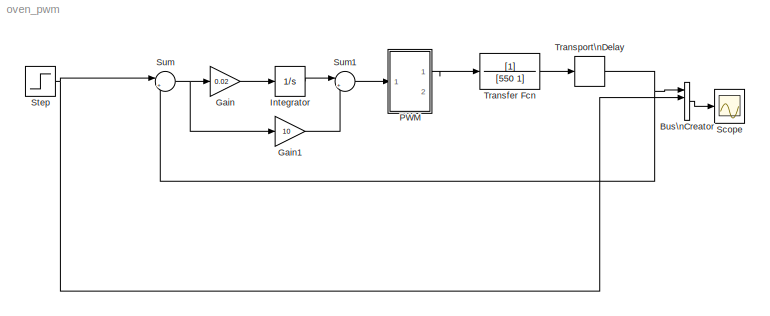
MODEL oven_pwm
KIND model
BLOCK [BusCreator] Bus\nCreator
  DisplayOption = bar
  Ports = [4, 1]
  SID = 8
BLOCK [Gain] Gain
  Gain = 0.02
  OutDataType = fixdt(1, 16)
  OutDataTypeMode = Inherit via internal rule
  OutDataTypeStr = Inherit: Inherit via internal rule
  OutScaling = 2^0
  ParamDataTypeStr = Inherit: Inherit via internal rule
  ParameterDataType = fixdt(1, 16)
  ParameterDataTypeMode = Inherit via internal rule
  ParameterScaling = 2^0
  SID = 36
  SaturateOnIntegerOverflow = off
BLOCK [Gain] Gain1
  Gain = 10
  OutDataType = fixdt(1, 16)
  OutDataTypeMode = Inherit via internal rule
  OutDataTypeStr = Inherit: Inherit via internal rule
  OutScaling = 2^0
  ParamDataTypeStr = Inherit: Inherit via internal rule
  ParameterDataType = fixdt(1, 16)
  ParameterDataTypeMode = Inherit via internal rule
  ParameterScaling = 2^0
  SID = 37
  SaturateOnIntegerOverflow = off
BLOCK [Integrator] Integrator
  Ports = [1, 1]
  SID = 35
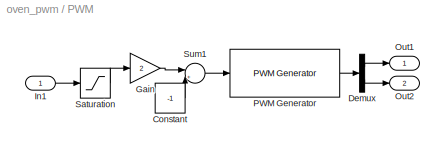
BLOCK [SubSystem] PWM
  FunctionWithSeparateData = off
  MaskHideContents = off
  MinAlgLoopOccurrences = off
  Opaque = off
  Ports = [1, 2]
  PropExecContextOutsideSubsystem = off
  RTWSystemCode = Auto
  RequestExecContextInheritance = off
  SID = 30
BLOCK [Constant] PWM/Constant
  OutDataType = fixdt(1, 16)
  OutScaling = 2^0
  SID = 23
  Value = -1
BLOCK [Demux] PWM/Demux
  DisplayOption = bar
  Outputs = 2
  Ports = [1, 2]
  SID = 22
BLOCK [Gain] PWM/Gain
  Gain = 2
  OutDataType = fixdt(1, 16)
  OutDataTypeMode = Inherit via internal rule
  OutDataTypeStr = Inherit: Inherit via internal rule
  OutScaling = 2^0
  ParamDataTypeStr = Inherit: Inherit via internal rule
  ParameterDataType = fixdt(1, 16)
  ParameterDataTypeMode = Inherit via internal rule
  ParameterScaling = 2^0
  SID = 24
  SaturateOnIntegerOverflow = off
BLOCK [Inport] PWM/In1
  IconDisplay = Port number
  SID = 33
BLOCK [Outport] PWM/Out1
  IconDisplay = Port number
  SID = 31
BLOCK [Outport] PWM/Out2
  IconDisplay = Port number
  Port = 2
  SID = 32
BLOCK [Reference] PWM/PWM Generator  REF=powerlib_extras/Control \nBlocks/PWM Generator
  DialogController = POWERSYS.PowerSysDialog
  Fc = 0.1
  Freq = 60
  FunctionWithSeparateData = off
  GeneratorMode = 1-arm  bridge (2 pulses)
  Internal = off
  Phase = 0
  Ports = [1, 1]
  RTWMemSecDataConstants = Inherit from model
  RTWMemSecDataInternal = Inherit from model
  RTWMemSecDataParameters = Inherit from model
  RTWMemSecFuncExecute = Inherit from model
  RTWMemSecFuncInitTerm = Inherit from model
  SID = 19
  ShowPortLabels = FromPortIcon
  SourceBlock = powerlib_extras/Control \nBlocks/PWM Generator
  SourceType = PWM Generator
  SystemSampleTime = -1
  mIndex = 0.4
BLOCK [Saturate] PWM/Saturation
  OutDataType = fixdt(1, 16)
  OutScaling = 2^0
  SID = 26
BLOCK [Sum] PWM/Sum1
  IconShape = round
  InputSameDT = off
  Inputs = |++
  OutDataType = fixdt(1, 16)
  OutDataTypeMode = Inherit via internal rule
  OutDataTypeStr = Inherit: Inherit via internal rule
  OutScaling = 2^0
  Ports = [2, 1]
  SID = 25
  SaturateOnIntegerOverflow = off
BLOCK [Scope] Scope
  DataFormat = StructureWithTime
  Floating = off
  LimitDataPoints = off
  NumInputPorts = 1
  Ports = [1]
  SID = 4
  SampleTime = 0
  YMax = 0.0012
  YMin = 0
  ZoomMode = xonly
BLOCK [Step] Step
  After = 0.001
  SID = 3
  SampleTime = 0
BLOCK [Sum] Sum
  IconShape = round
  InputSameDT = off
  Inputs = |+-
  OutDataType = fixdt(1, 16)
  OutDataTypeMode = Inherit via internal rule
  OutDataTypeStr = Inherit: Inherit via internal rule
  OutScaling = 2^0
  Ports = [2, 1]
  SID = 7
  SaturateOnIntegerOverflow = off
BLOCK [Sum] Sum1
  IconShape = round
  InputSameDT = off
  Inputs = |++
  OutDataType = fixdt(1, 16)
  OutDataTypeMode = Inherit via internal rule
  OutDataTypeStr = Inherit: Inherit via internal rule
  OutScaling = 2^0
  Ports = [2, 1]
  SID = 38
  SaturateOnIntegerOverflow = off
BLOCK [TransferFcn] Transfer Fcn
  Denominator = [550 1]
  SID = 2
BLOCK [TransportDelay] Transport\nDelay
  DelayTime = 36
  SID = 1
LINE Bus\nCreator:1 -> Scope:1
LINE Gain1:1 -> Sum1:2
LINE Gain:1 -> Integrator:1
LINE Integrator:1 -> Sum1:1
LINE PWM/Constant:1 -> PWM/Sum1:2
LINE PWM/Demux:1 -> PWM/Out1:1
LINE PWM/Demux:2 -> PWM/Out2:1
LINE PWM/Gain:1 -> PWM/Sum1:1
LINE PWM/In1:1 -> PWM/Saturation:1
LINE PWM/PWM Generator:1 -> PWM/Demux:1
LINE PWM/Saturation:1 -> PWM/Gain:1
LINE PWM/Sum1:1 -> PWM/PWM Generator:1
LINE PWM:1 -> Transfer Fcn:1
NET Step:1 -> Bus\nCreator:2, Sum:1
LINE Sum1:1 -> PWM:1
NET Sum:1 -> Gain1:1, Gain:1
LINE Transfer Fcn:1 -> Transport\nDelay:1
NET Transport\nDelay:1 -> Bus\nCreator:1, Sum:2
note: NET lines group one-source signal fan-out (src -> all destinations, sorted); 1:1 wires keep LINE
